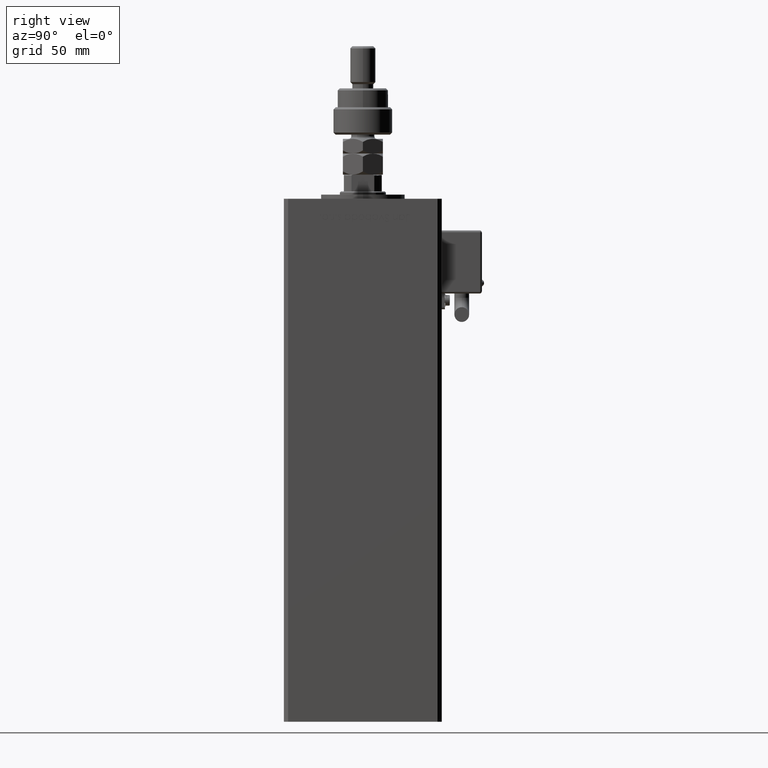
[diagram: clean part render]
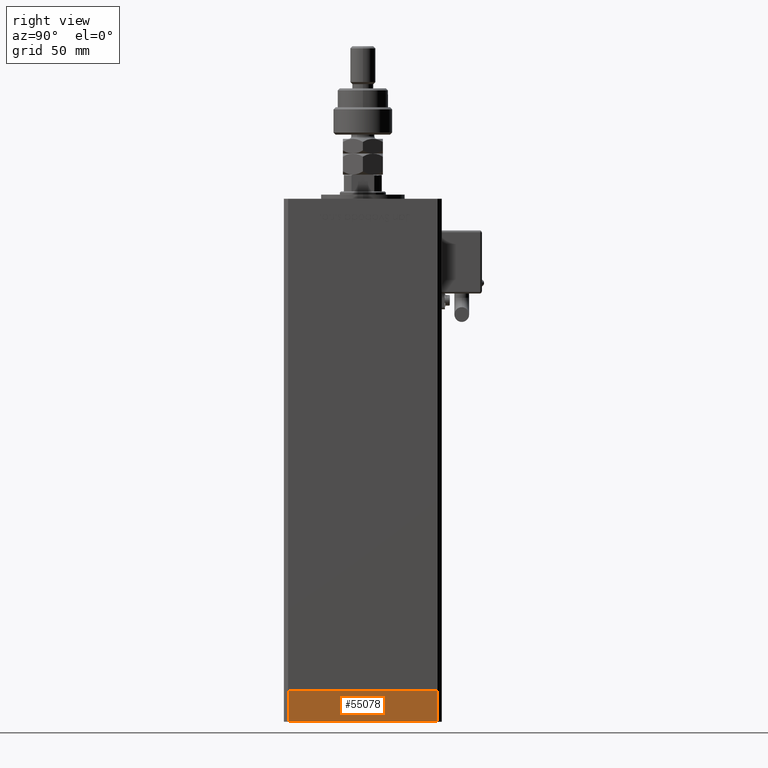
[diagram: same view with one face highlighted and labeled with its STEP entity id]
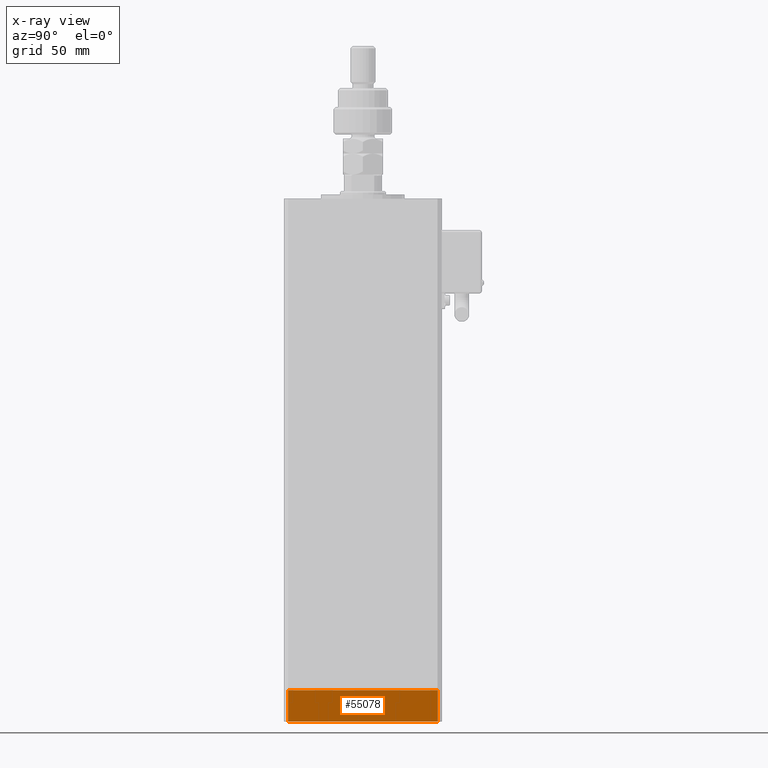
[diagram: x-ray of the same camera — body ghosted, the highlighted face saturated]
A machine part, right view. The second image highlights one B-rep face of the part: STEP entity #55078.
The next image is the same camera in x-ray: the body ghosted, the highlighted face saturated — about 0% of this face is hidden behind the body in this view.
In plain terms, the highlighted planar face has unit normal (1, -0, 0).
Its self-contained STEP definition (entity closure, byte-faithful):
#1252 = LINE ( 'NONE', #9772, #34462 ) ;
#6668 = CARTESIAN_POINT ( 'NONE',  ( -42.50000000000000711, 35.49999999999997158, -15.00000000000000000 ) ) ;
#7343 = CARTESIAN_POINT ( 'NONE',  ( -42.50000000000000711, 35.49999999999997158, 0.000000000000000000 ) ) ;
#8254 = CARTESIAN_POINT ( 'NONE',  ( -42.50000000000000000, -35.50000000000000711, 0.000000000000000000 ) ) ;
#9772 = CARTESIAN_POINT ( 'NONE',  ( -42.50000000000000711, 35.49999999999997158, -15.00000000000000000 ) ) ;
#10305 = ORIENTED_EDGE ( 'NONE', *, *, #24697, .F. ) ;
#10648 = CARTESIAN_POINT ( 'NONE',  ( -42.50000000000000711, 35.49999999999997158, -15.00000000000000000 ) ) ;
#15335 = LINE ( 'NONE', #10648, #20735 ) ;
#16591 = CARTESIAN_POINT ( 'NONE',  ( -42.50000000000000711, 35.49999999999997158, -15.00000000000000000 ) ) ;
#16857 = EDGE_CURVE ( 'NONE', #38514, #51110, #46395, .T. ) ;
#17627 = VERTEX_POINT ( 'NONE', #16591 ) ;
#19412 = CARTESIAN_POINT ( 'NONE',  ( -42.50000000000000000, -35.50000000000000711, -15.00000000000000000 ) ) ;
#19745 = CARTESIAN_POINT ( 'NONE',  ( -42.50000000000000711, 35.49999999999997158, 0.000000000000000000 ) ) ;
#20021 = ORIENTED_EDGE ( 'NONE', *, *, #56286, .T. ) ;
#20735 = VECTOR ( 'NONE', #46413, 1000.000000000000000 ) ;
#24697 = EDGE_CURVE ( 'NONE', #17627, #37282, #15335, .T. ) ;
#29094 = DIRECTION ( 'NONE',  ( 0.000000000000000000, 0.000000000000000000, 1.000000000000000000 ) ) ;
#29832 = VECTOR ( 'NONE', #38495, 1000.000000000000000 ) ;
#33615 = DIRECTION ( 'NONE',  ( 9.773090005503140331E-17, -1.000000000000000000, 0.000000000000000000 ) ) ;
#34462 = VECTOR ( 'NONE', #54633, 1000.000000000000000 ) ;
#37282 = VERTEX_POINT ( 'NONE', #7343 ) ;
#38495 = DIRECTION ( 'NONE',  ( 9.773090005503140331E-17, -1.000000000000000000, 0.000000000000000000 ) ) ;
#38514 = VERTEX_POINT ( 'NONE', #55396 ) ;
#42040 = LINE ( 'NONE', #19745, #29832 ) ;
#42204 = ORIENTED_EDGE ( 'NONE', *, *, #16857, .T. ) ;
#44947 = VECTOR ( 'NONE', #29094, 1000.000000000000000 ) ;
#46395 = LINE ( 'NONE', #19412, #44947 ) ;
#46413 = DIRECTION ( 'NONE',  ( 0.000000000000000000, 0.000000000000000000, 1.000000000000000000 ) ) ;
#46831 = PLANE ( 'NONE',  #54108 ) ;
#49397 = ORIENTED_EDGE ( 'NONE', *, *, #52489, .F. ) ;
#49927 = EDGE_LOOP ( 'NONE', ( #49397, #10305, #20021, #42204 ) ) ;
#51110 = VERTEX_POINT ( 'NONE', #8254 ) ;
#51230 = FACE_OUTER_BOUND ( 'NONE', #49927, .T. ) ;
#52489 = EDGE_CURVE ( 'NONE', #37282, #51110, #42040, .T. ) ;
#54108 = AXIS2_PLACEMENT_3D ( 'NONE', #6668, #55907, #33615 ) ;
#54633 = DIRECTION ( 'NONE',  ( 9.773090005503140331E-17, -1.000000000000000000, 0.000000000000000000 ) ) ;
#55078 = ADVANCED_FACE ( 'NONE', ( #51230 ), #46831, .T. ) ;
#55396 = CARTESIAN_POINT ( 'NONE',  ( -42.50000000000000000, -35.50000000000000711, -15.00000000000000000 ) ) ;
#55907 = DIRECTION ( 'NONE',  ( -1.000000000000000000, -9.773090005503140331E-17, 0.000000000000000000 ) ) ;
#56286 = EDGE_CURVE ( 'NONE', #17627, #38514, #1252, .T. ) ;